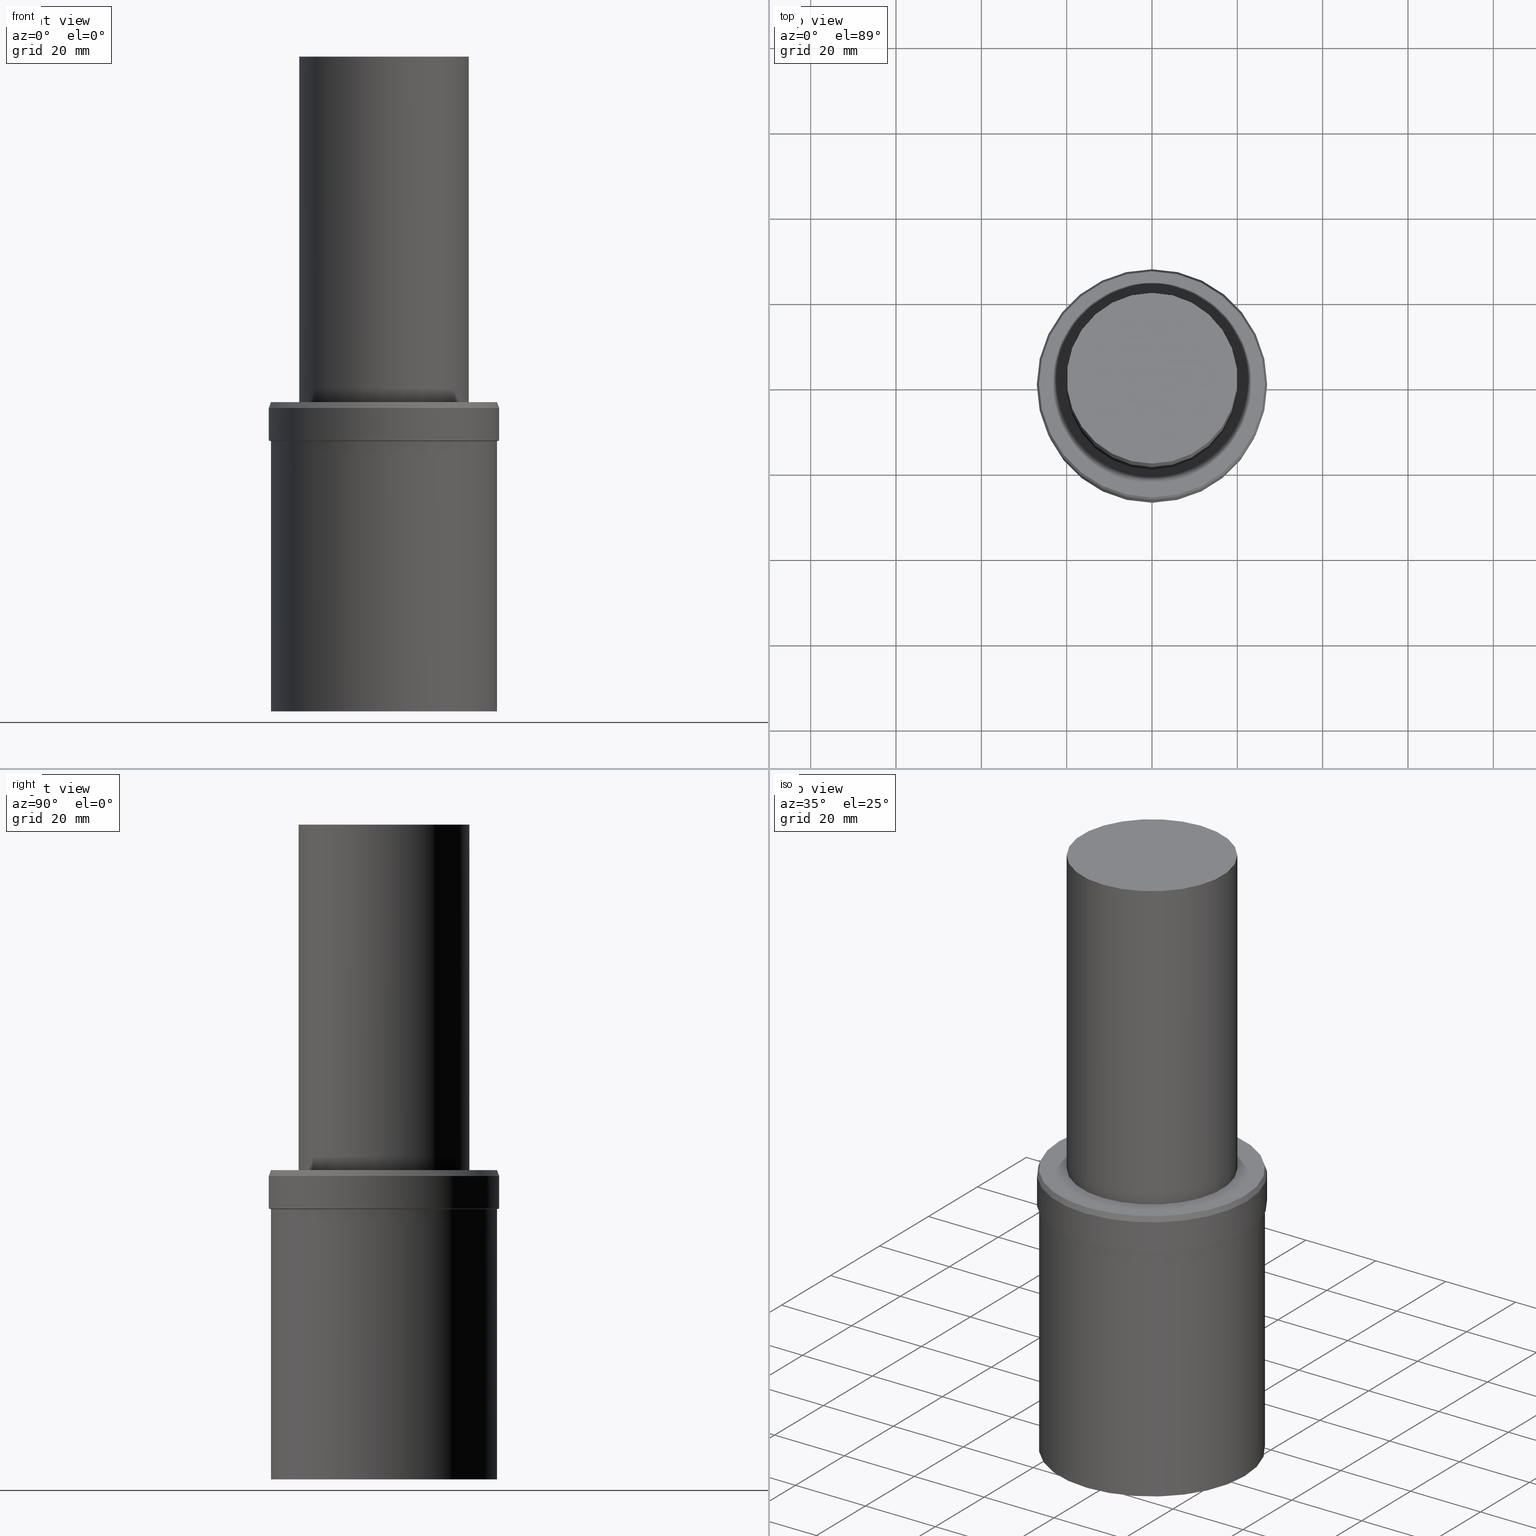
[diagram: canonical four-view strip — front | top / right | iso, engineering-drawing reading convention]
A machine part, canonical four-view strip (front | top / right | iso — engineering-drawing reading convention). The complete STEP part file that produces these views, byte-faithful:
ISO-10303-21;
HEADER;
FILE_DESCRIPTION((''),'1');
FILE_NAME('V:/02_3D_Field-HP\X2\FF71FF6FFF8CFF9F5916\X0\2013/02_Step_Field-HP\X2\FF71FF6FFF8CFF9F5916\X0\2013/31_\X2\30E130AC30B730F330AF30ED30BF30C330D430F330B030DB30EB30C0\X0\ MGT/MGT_ANSI_STEP/MGT36-AU1.3_8-2.5.stp','2018-02-02T01:32:18',(''),(''),'Spatial Interop R21 SP3','Kubotek KeyCreator 2011 V10.0.2 (22737)',' ');
FILE_SCHEMA(('automotive_design'));
ENDSEC;
DATA;
#1=MECHANICAL_DESIGN_GEOMETRIC_PRESENTATION_REPRESENTATION(' ',(#10,#11,#12,#13,#14,#15,#16,#17,#18,#19,#20,#21,#22,#23,#24,#25),#6);
#2=PRODUCT_DEFINITION_CONTEXT('',#26,'design');
#3=APPLICATION_PROTOCOL_DEFINITION('INTERNATIONAL STANDARD','automotive_design',1994,#26);
#4=PRODUCT_CATEGORY_RELATIONSHIP('NONE','NONE',#27,#28);
#5=SHAPE_DEFINITION_REPRESENTATION(#29,#30);
#6= (GEOMETRIC_REPRESENTATION_CONTEXT(3)GLOBAL_UNCERTAINTY_ASSIGNED_CONTEXT((#33))GLOBAL_UNIT_ASSIGNED_CONTEXT((#35,#36,#37))REPRESENTATION_CONTEXT('NONE','WORKSPACE'));
#10=STYLED_ITEM('',(#39,#40),#41);
#11=STYLED_ITEM('',(#42,#43),#44);
#12=STYLED_ITEM('',(#45,#46),#47);
#13=STYLED_ITEM('',(#48),#49);
#14=STYLED_ITEM('',(#50),#51);
#15=STYLED_ITEM('',(#52),#53);
#16=STYLED_ITEM('',(#54,#55),#56);
#17=STYLED_ITEM('',(#57),#58);
#18=STYLED_ITEM('',(#59,#60),#61);
#19=STYLED_ITEM('',(#62),#63);
#20=STYLED_ITEM('',(#64,#65),#66);
#21=STYLED_ITEM('',(#67),#68);
#22=STYLED_ITEM('',(#69,#70),#71);
#23=STYLED_ITEM('',(#72,#73),#74);
#24=STYLED_ITEM('',(#75),#76);
#25=STYLED_ITEM('',(#77,#78),#79);
#26=APPLICATION_CONTEXT(' ');
#27=PRODUCT_CATEGORY('part','NONE');
#28=PRODUCT_RELATED_PRODUCT_CATEGORY('detail',' ',(#80));
#29=PRODUCT_DEFINITION_SHAPE('NONE','NONE',#81);
#30=ADVANCED_BREP_SHAPE_REPRESENTATION('Unnamed[1]',(#71,#82),#6);
#33=UNCERTAINTY_MEASURE_WITH_UNIT(LENGTH_MEASURE(1.0E-006),#35,'','');
#35= (CONVERSION_BASED_UNIT('MILLIMETRE',#85)LENGTH_UNIT()NAMED_UNIT(#88));
#36= (NAMED_UNIT(#90)PLANE_ANGLE_UNIT()SI_UNIT($,.RADIAN.));
#37= (NAMED_UNIT(#90)SOLID_ANGLE_UNIT()SI_UNIT($,.STERADIAN.));
#39=PRESENTATION_STYLE_ASSIGNMENT((#96));
#40=PRESENTATION_STYLE_ASSIGNMENT((#97));
#41=ADVANCED_FACE('Unnamed[1]',(#98,#99),#100,.T.);
#42=PRESENTATION_STYLE_ASSIGNMENT((#101));
#43=PRESENTATION_STYLE_ASSIGNMENT((#102));
#44=ADVANCED_FACE('Unnamed[1]',(#103,#104),#105,.T.);
#45=PRESENTATION_STYLE_ASSIGNMENT((#106));
#46=PRESENTATION_STYLE_ASSIGNMENT((#107));
#47=ADVANCED_FACE('Unnamed[1]',(#108,#109),#110,.T.);
#48=PRESENTATION_STYLE_ASSIGNMENT((#111));
#49=EDGE_CURVE('Unnamed[1]',#112,#112,#113,.T.);
#50=PRESENTATION_STYLE_ASSIGNMENT((#114));
#51=EDGE_CURVE('Unnamed[1]',#115,#115,#116,.T.);
#52=PRESENTATION_STYLE_ASSIGNMENT((#117));
#53=EDGE_CURVE('Unnamed[1]',#118,#118,#119,.T.);
#54=PRESENTATION_STYLE_ASSIGNMENT((#120));
#55=PRESENTATION_STYLE_ASSIGNMENT((#121));
#56=ADVANCED_FACE('Unnamed[1]',(#122),#123,.T.);
#57=PRESENTATION_STYLE_ASSIGNMENT((#124));
#58=EDGE_CURVE('Unnamed[1]',#125,#125,#126,.T.);
#59=PRESENTATION_STYLE_ASSIGNMENT((#127));
#60=PRESENTATION_STYLE_ASSIGNMENT((#128));
#61=ADVANCED_FACE('Unnamed[1]',(#129),#130,.T.);
#62=PRESENTATION_STYLE_ASSIGNMENT((#131));
#63=EDGE_CURVE('Unnamed[1]',#132,#132,#133,.T.);
#64=PRESENTATION_STYLE_ASSIGNMENT((#134));
#65=PRESENTATION_STYLE_ASSIGNMENT((#135));
#66=ADVANCED_FACE('Unnamed[1]',(#136,#137),#138,.T.);
#67=PRESENTATION_STYLE_ASSIGNMENT((#139));
#68=EDGE_CURVE('Unnamed[1]',#140,#140,#141,.T.);
#69=PRESENTATION_STYLE_ASSIGNMENT((#142));
#70=PRESENTATION_STYLE_ASSIGNMENT((#143));
#71=MANIFOLD_SOLID_BREP('Unnamed[1]',#144);
#72=PRESENTATION_STYLE_ASSIGNMENT((#145));
#73=PRESENTATION_STYLE_ASSIGNMENT((#146));
#74=ADVANCED_FACE('Unnamed[1]',(#147,#148),#149,.T.);
#75=PRESENTATION_STYLE_ASSIGNMENT((#150));
#76=EDGE_CURVE('Unnamed[1]',#151,#151,#152,.T.);
#77=PRESENTATION_STYLE_ASSIGNMENT((#153));
#78=PRESENTATION_STYLE_ASSIGNMENT((#154));
#79=ADVANCED_FACE('Unnamed[1]',(#155,#156),#157,.T.);
#80=PRODUCT('Unnamed[1]','Unnamed[1]','PART-Unnamed[1]-DESC',(#158));
#81=PRODUCT_DEFINITION('NONE','NONE',#159,#2);
#82=AXIS2_PLACEMENT_3D('',#160,#161,#162);
#85=LENGTH_MEASURE_WITH_UNIT(LENGTH_MEASURE(1.0),#163);
#88=DIMENSIONAL_EXPONENTS(1.0,0.0,0.0,0.0,0.0,0.0,0.0);
#90=DIMENSIONAL_EXPONENTS(0.0,0.0,0.0,0.0,0.0,0.0,0.0);
#96=SURFACE_STYLE_USAGE(.BOTH.,#164);
#97=CURVE_STYLE('',#165,POSITIVE_LENGTH_MEASURE(1000.0),#166);
#98=FACE_OUTER_BOUND('',#167,.T.);
#99=FACE_BOUND('',#168,.T.);
#100=PLANE('',#169);
#101=SURFACE_STYLE_USAGE(.BOTH.,#170);
#102=CURVE_STYLE('',#171,POSITIVE_LENGTH_MEASURE(1000.0),#172);
#103=FACE_BOUND('',#173,.T.);
#104=FACE_BOUND('',#174,.T.);
#105=CYLINDRICAL_SURFACE('',#175,20.0000000000027);
#106=SURFACE_STYLE_USAGE(.BOTH.,#176);
#107=CURVE_STYLE('',#177,POSITIVE_LENGTH_MEASURE(1000.0),#178);
#108=FACE_BOUND('',#179,.T.);
#109=FACE_BOUND('',#180,.T.);
#110=CYLINDRICAL_SURFACE('',#181,26.5000000000001);
#111=CURVE_STYLE('',#182,POSITIVE_LENGTH_MEASURE(1000.0),#183);
#112=VERTEX_POINT('',#184);
#113=CIRCLE('',#185,26.9999999999945);
#114=CURVE_STYLE('',#186,POSITIVE_LENGTH_MEASURE(1000.0),#187);
#115=VERTEX_POINT('',#188);
#116=CIRCLE('',#189,26.5000000000005);
#117=CURVE_STYLE('',#190,POSITIVE_LENGTH_MEASURE(1000.0),#191);
#118=VERTEX_POINT('',#192);
#119=CIRCLE('',#193,26.4999999999998);
#120=SURFACE_STYLE_USAGE(.BOTH.,#194);
#121=CURVE_STYLE('',#195,POSITIVE_LENGTH_MEASURE(1000.0),#196);
#122=FACE_OUTER_BOUND('',#197,.T.);
#123=PLANE('',#198);
#124=CURVE_STYLE('',#199,POSITIVE_LENGTH_MEASURE(1000.0),#200);
#125=VERTEX_POINT('',#201);
#126=CIRCLE('',#202,20.0000000000027);
#127=SURFACE_STYLE_USAGE(.BOTH.,#203);
#128=CURVE_STYLE('',#204,POSITIVE_LENGTH_MEASURE(1000.0),#205);
#129=FACE_OUTER_BOUND('',#206,.T.);
#130=PLANE('',#207);
#131=CURVE_STYLE('',#208,POSITIVE_LENGTH_MEASURE(1000.0),#209);
#132=VERTEX_POINT('',#210);
#133=CIRCLE('',#211,20.0000000000027);
#134=SURFACE_STYLE_USAGE(.BOTH.,#212);
#135=CURVE_STYLE('',#213,POSITIVE_LENGTH_MEASURE(1000.0),#214);
#136=FACE_BOUND('',#215,.T.);
#137=FACE_BOUND('',#216,.T.);
#138=CYLINDRICAL_SURFACE('',#217,26.9999999999945);
#139=CURVE_STYLE('',#218,POSITIVE_LENGTH_MEASURE(1000.0),#219);
#140=VERTEX_POINT('',#220);
#141=CIRCLE('',#221,26.4999999999965);
#142=SURFACE_STYLE_USAGE(.BOTH.,#222);
#143=CURVE_STYLE('',#223,POSITIVE_LENGTH_MEASURE(1000.0),#224);
#144=CLOSED_SHELL('',(#61,#44,#41,#74,#66,#79,#47,#56));
#145=SURFACE_STYLE_USAGE(.BOTH.,#225);
#146=CURVE_STYLE('',#226,POSITIVE_LENGTH_MEASURE(1000.0),#227);
#147=FACE_BOUND('',#228,.T.);
#148=FACE_BOUND('',#229,.T.);
#149=CONICAL_SURFACE('',#230,26.7499999999955,0.349065850398426);
#150=CURVE_STYLE('',#231,POSITIVE_LENGTH_MEASURE(1000.0),#232);
#151=VERTEX_POINT('',#233);
#152=CIRCLE('',#234,26.9999999999945);
#153=SURFACE_STYLE_USAGE(.BOTH.,#235);
#154=CURVE_STYLE('',#236,POSITIVE_LENGTH_MEASURE(1000.0),#237);
#155=FACE_BOUND('',#238,.T.);
#156=FACE_BOUND('',#239,.T.);
#157=CONICAL_SURFACE('',#240,26.7499999999975,1.30899693899613);
#158=PRODUCT_CONTEXT('',#26,'mechanical');
#159=PRODUCT_DEFINITION_FORMATION_WITH_SPECIFIED_SOURCE(' ','NONE',#80,.NOT_KNOWN.);
#160=CARTESIAN_POINT('',(0.0,0.0,0.0));
#161=DIRECTION('',(0.0,0.0,1.0));
#162=DIRECTION('',(1.0,0.0,0.0));
#163= (NAMED_UNIT(#88)LENGTH_UNIT()SI_UNIT(.MILLI.,.METRE.));
#164=SURFACE_SIDE_STYLE('',(#242));
#165=DRAUGHTING_PRE_DEFINED_CURVE_FONT('continuous');
#166=COLOUR_RGB('',0.0,1.0,0.0);
#167=EDGE_LOOP('',(#243));
#168=EDGE_LOOP('',(#244));
#169=AXIS2_PLACEMENT_3D('',#245,#246,#247);
#170=SURFACE_SIDE_STYLE('',(#248));
#171=DRAUGHTING_PRE_DEFINED_CURVE_FONT('continuous');
#172=COLOUR_RGB('',0.0,1.0,0.0);
#173=EDGE_LOOP('',(#249));
#174=EDGE_LOOP('',(#250));
#175=AXIS2_PLACEMENT_3D('',#251,#252,#253);
#176=SURFACE_SIDE_STYLE('',(#254));
#177=DRAUGHTING_PRE_DEFINED_CURVE_FONT('continuous');
#178=COLOUR_RGB('',0.0,1.0,0.0);
#179=EDGE_LOOP('',(#255));
#180=EDGE_LOOP('',(#256));
#181=AXIS2_PLACEMENT_3D('',#257,#258,#259);
#182=DRAUGHTING_PRE_DEFINED_CURVE_FONT('continuous');
#183=COLOUR_RGB('',0.0,1.0,0.0);
#184=CARTESIAN_POINT('',(-4.35522741122223E-015,26.9999999999945,71.1262612902677));
#185=AXIS2_PLACEMENT_3D('',#260,#261,#262);
#186=DRAUGHTING_PRE_DEFINED_CURVE_FONT('continuous');
#187=COLOUR_RGB('',0.0,1.0,0.0);
#188=CARTESIAN_POINT('',(-3.88005000927112E-015,26.5000000000005,63.3660254037746));
#189=AXIS2_PLACEMENT_3D('',#263,#264,#265);
#190=DRAUGHTING_PRE_DEFINED_CURVE_FONT('continuous');
#191=COLOUR_RGB('',0.0,1.0,0.0);
#192=CARTESIAN_POINT('',(0.0,26.4999999999998,0.0));
#193=AXIS2_PLACEMENT_3D('',#266,#267,#268);
#194=SURFACE_SIDE_STYLE('',(#269));
#195=DRAUGHTING_PRE_DEFINED_CURVE_FONT('continuous');
#196=COLOUR_RGB('',0.0,1.0,0.0);
#197=EDGE_LOOP('',(#270));
#198=AXIS2_PLACEMENT_3D('',#271,#272,#273);
#199=DRAUGHTING_PRE_DEFINED_CURVE_FONT('continuous');
#200=COLOUR_RGB('',0.0,1.0,0.0);
#201=CARTESIAN_POINT('',(-9.39916418345535E-015,20.0000000000027,153.49999999999));
#202=AXIS2_PLACEMENT_3D('',#274,#275,#276);
#203=SURFACE_SIDE_STYLE('',(#277));
#204=DRAUGHTING_PRE_DEFINED_CURVE_FONT('continuous');
#205=COLOUR_RGB('',0.0,1.0,0.0);
#206=EDGE_LOOP('',(#278));
#207=AXIS2_PLACEMENT_3D('',#279,#280,#281);
#208=DRAUGHTING_PRE_DEFINED_CURVE_FONT('continuous');
#209=COLOUR_RGB('',0.0,1.0,0.0);
#210=CARTESIAN_POINT('',(-4.43934464690863E-015,20.0000000000027,72.4999999999914));
#211=AXIS2_PLACEMENT_3D('',#282,#283,#284);
#212=SURFACE_SIDE_STYLE('',(#285));
#213=DRAUGHTING_PRE_DEFINED_CURVE_FONT('continuous');
#214=COLOUR_RGB('',0.0,1.0,0.0);
#215=EDGE_LOOP('',(#286));
#216=EDGE_LOOP('',(#287));
#217=AXIS2_PLACEMENT_3D('',#288,#289,#290);
#218=DRAUGHTING_PRE_DEFINED_CURVE_FONT('continuous');
#219=COLOUR_RGB('',0.0,1.0,0.0);
#220=CARTESIAN_POINT('',(-4.43934464690863E-015,26.4999999999965,72.4999999999914));
#221=AXIS2_PLACEMENT_3D('',#291,#292,#293);
#222=SURFACE_SIDE_STYLE('',(#294));
#223=DRAUGHTING_PRE_DEFINED_CURVE_FONT('continuous');
#224=COLOUR_RGB('',0.0,1.0,0.0);
#225=SURFACE_SIDE_STYLE('',(#295));
#226=DRAUGHTING_PRE_DEFINED_CURVE_FONT('continuous');
#227=COLOUR_RGB('',0.0,1.0,0.0);
#228=EDGE_LOOP('',(#296));
#229=EDGE_LOOP('',(#297));
#230=AXIS2_PLACEMENT_3D('',#298,#299,#300);
#231=DRAUGHTING_PRE_DEFINED_CURVE_FONT('continuous');
#232=COLOUR_RGB('',0.0,1.0,0.0);
#233=CARTESIAN_POINT('',(-3.88825358729213E-015,26.9999999999945,63.4999999999883));
#234=AXIS2_PLACEMENT_3D('',#301,#302,#303);
#235=SURFACE_SIDE_STYLE('',(#304));
#236=DRAUGHTING_PRE_DEFINED_CURVE_FONT('continuous');
#237=COLOUR_RGB('',0.0,1.0,0.0);
#238=EDGE_LOOP('',(#305));
#239=EDGE_LOOP('',(#306));
#240=AXIS2_PLACEMENT_3D('',#307,#308,#309);
#242=SURFACE_STYLE_FILL_AREA(#310);
#243=ORIENTED_EDGE('',*,*,#68,.F.);
#244=ORIENTED_EDGE('',*,*,#63,.T.);
#245=CARTESIAN_POINT('',(-4.43934464690863E-015,23.2499999999996,72.4999999999914));
#246=DIRECTION('',(-6.12323399573677E-017,-2.03546435311683E-015,1.0));
#247=DIRECTION('',(1.29463397971922E-031,-1.0,-2.03546435311683E-015));
#248=SURFACE_STYLE_FILL_AREA(#311);
#249=ORIENTED_EDGE('',*,*,#63,.F.);
#250=ORIENTED_EDGE('',*,*,#58,.T.);
#251=CARTESIAN_POINT('',(-6.91925441518199E-015,-1.3838508830364E-014,112.999999999991));
#252=DIRECTION('',(6.12323399573677E-017,1.22464679914703E-016,-1.0));
#253=DIRECTION('',(-1.23259516440766E-032,1.0,1.22464679914703E-016));
#254=SURFACE_STYLE_FILL_AREA(#312);
#255=ORIENTED_EDGE('',*,*,#53,.F.);
#256=ORIENTED_EDGE('',*,*,#51,.T.);
#257=CARTESIAN_POINT('',(-1.94002500463556E-015,-3.88005000927112E-015,31.6830127018873));
#258=DIRECTION('',(6.12323399573677E-017,1.22464679914764E-016,-1.0));
#259=DIRECTION('',(-1.23259516440783E-032,1.0,1.22464679914764E-016));
#260=CARTESIAN_POINT('',(-4.35522741122223E-015,-8.71045482244446E-015,71.1262612902677));
#261=DIRECTION('',(6.12323399573677E-017,1.22464679914718E-016,-1.0));
#262=DIRECTION('',(-1.23259516440775E-032,1.0,1.22464679914718E-016));
#263=CARTESIAN_POINT('',(-3.88005000927112E-015,-7.76010001854224E-015,63.3660254037746));
#264=DIRECTION('',(6.12323399573677E-017,1.22464679914762E-016,-1.0));
#265=DIRECTION('',(-1.23259516440781E-032,1.0,1.22464679914762E-016));
#266=CARTESIAN_POINT('',(0.0,0.0,0.0));
#267=DIRECTION('',(6.12323399573677E-017,1.22464679914765E-016,-1.0));
#268=DIRECTION('',(-1.23259516440784E-032,1.0,1.22464679914765E-016));
#269=SURFACE_STYLE_FILL_AREA(#313);
#270=ORIENTED_EDGE('',*,*,#53,.T.);
#271=CARTESIAN_POINT('',(2.17725609840999E-028,13.2499999999999,-3.5527136788005E-012));
#272=DIRECTION('',(6.12323399573677E-017,2.67983669594762E-013,-1.0));
#273=DIRECTION('',(-1.64140943123801E-029,1.0,2.67983669594762E-013));
#274=CARTESIAN_POINT('',(-9.39916418345535E-015,-1.87983283669107E-014,153.49999999999));
#275=DIRECTION('',(6.12323399573677E-017,1.22464679914703E-016,-1.0));
#276=DIRECTION('',(-1.23259516440766E-032,1.0,1.22464679914703E-016));
#277=SURFACE_STYLE_FILL_AREA(#314);
#278=ORIENTED_EDGE('',*,*,#58,.F.);
#279=CARTESIAN_POINT('',(-9.39916418345538E-015,10.0000000000013,153.499999999991));
#280=DIRECTION('',(-6.12323399573677E-017,4.81944413517655E-014,1.0));
#281=DIRECTION('',(-2.94623126417595E-030,-1.0,4.81944413517655E-014));
#282=CARTESIAN_POINT('',(-4.43934464690863E-015,-8.87868929381725E-015,72.4999999999914));
#283=DIRECTION('',(6.12323399573677E-017,1.22464679914703E-016,-1.0));
#284=DIRECTION('',(-1.23259516440766E-032,1.0,1.22464679914703E-016));
#285=SURFACE_STYLE_FILL_AREA(#315);
#286=ORIENTED_EDGE('',*,*,#76,.F.);
#287=ORIENTED_EDGE('',*,*,#49,.T.);
#288=CARTESIAN_POINT('',(-4.12174049925718E-015,-8.24348099851436E-015,67.313130645128));
#289=DIRECTION('',(6.12323399573677E-017,1.22464679914718E-016,-1.0));
#290=DIRECTION('',(-1.23259516440775E-032,1.0,1.22464679914718E-016));
#291=CARTESIAN_POINT('',(-4.43934464690863E-015,-8.87868929381726E-015,72.4999999999914));
#292=DIRECTION('',(6.12323399573676E-017,1.22464679914719E-016,-1.0));
#293=DIRECTION('',(-1.23259516440799E-032,1.0,1.22464679914719E-016));
#294=SURFACE_STYLE_FILL_AREA(#316);
#295=SURFACE_STYLE_FILL_AREA(#317);
#296=ORIENTED_EDGE('',*,*,#49,.F.);
#297=ORIENTED_EDGE('',*,*,#68,.T.);
#298=CARTESIAN_POINT('',(-4.39728602906543E-015,-8.79457205813086E-015,71.8131306451295));
#299=DIRECTION('',(6.12323399573677E-017,1.22464679914719E-016,-1.0));
#300=DIRECTION('',(-1.2325951644077E-032,1.0,1.22464679914719E-016));
#301=CARTESIAN_POINT('',(-3.88825358729213E-015,-7.77650717458426E-015,63.4999999999883));
#302=DIRECTION('',(6.12323399573677E-017,1.22464679914718E-016,-1.0));
#303=DIRECTION('',(-1.23259516440775E-032,1.0,1.22464679914718E-016));
#304=SURFACE_STYLE_FILL_AREA(#318);
#305=ORIENTED_EDGE('',*,*,#51,.F.);
#306=ORIENTED_EDGE('',*,*,#76,.T.);
#307=CARTESIAN_POINT('',(-3.88415179828163E-015,-7.76830359656325E-015,63.4330127018815));
#308=DIRECTION('',(-6.12323399573677E-017,-1.2246467991471E-016,1.0));
#309=DIRECTION('',(-1.23259516440795E-032,1.0,1.2246467991471E-016));
#310=FILL_AREA_STYLE('',(#319));
#311=FILL_AREA_STYLE('',(#320));
#312=FILL_AREA_STYLE('',(#321));
#313=FILL_AREA_STYLE('',(#322));
#314=FILL_AREA_STYLE('',(#323));
#315=FILL_AREA_STYLE('',(#324));
#316=FILL_AREA_STYLE('',(#325));
#317=FILL_AREA_STYLE('',(#326));
#318=FILL_AREA_STYLE('',(#327));
#319=FILL_AREA_STYLE_COLOUR('',#328);
#320=FILL_AREA_STYLE_COLOUR('',#329);
#321=FILL_AREA_STYLE_COLOUR('',#330);
#322=FILL_AREA_STYLE_COLOUR('',#331);
#323=FILL_AREA_STYLE_COLOUR('',#332);
#324=FILL_AREA_STYLE_COLOUR('',#333);
#325=FILL_AREA_STYLE_COLOUR('',#334);
#326=FILL_AREA_STYLE_COLOUR('',#335);
#327=FILL_AREA_STYLE_COLOUR('',#336);
#328=COLOUR_RGB('',0.0,1.0,0.0);
#329=COLOUR_RGB('',0.0,1.0,0.0);
#330=COLOUR_RGB('',0.0,1.0,0.0);
#331=COLOUR_RGB('',0.0,1.0,0.0);
#332=COLOUR_RGB('',0.0,1.0,0.0);
#333=COLOUR_RGB('',0.0,1.0,0.0);
#334=COLOUR_RGB('',0.0,1.0,0.0);
#335=COLOUR_RGB('',0.0,1.0,0.0);
#336=COLOUR_RGB('',0.0,1.0,0.0);
ENDSEC;
END-ISO-10303-21;
